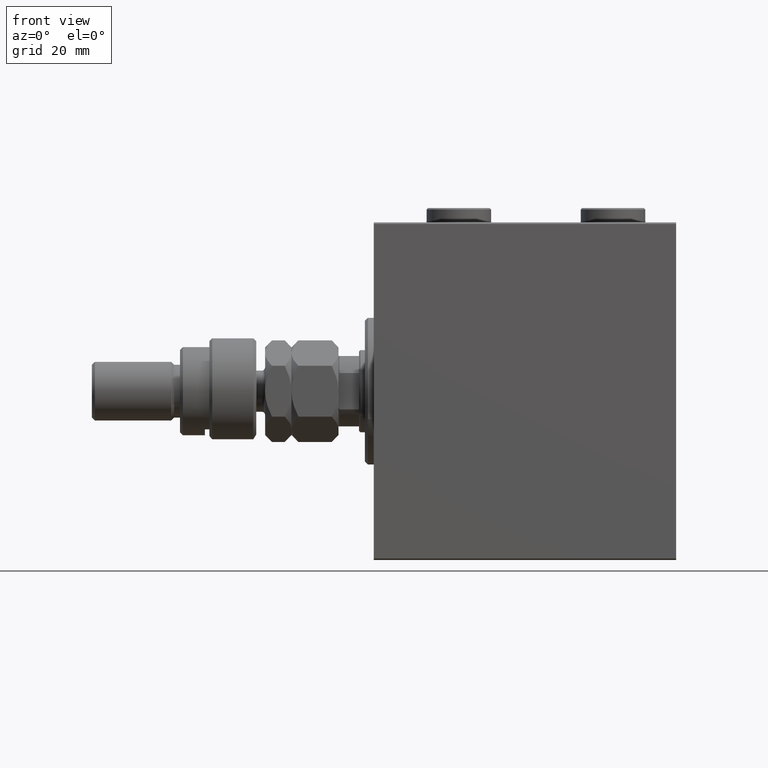
[diagram: clean part render]
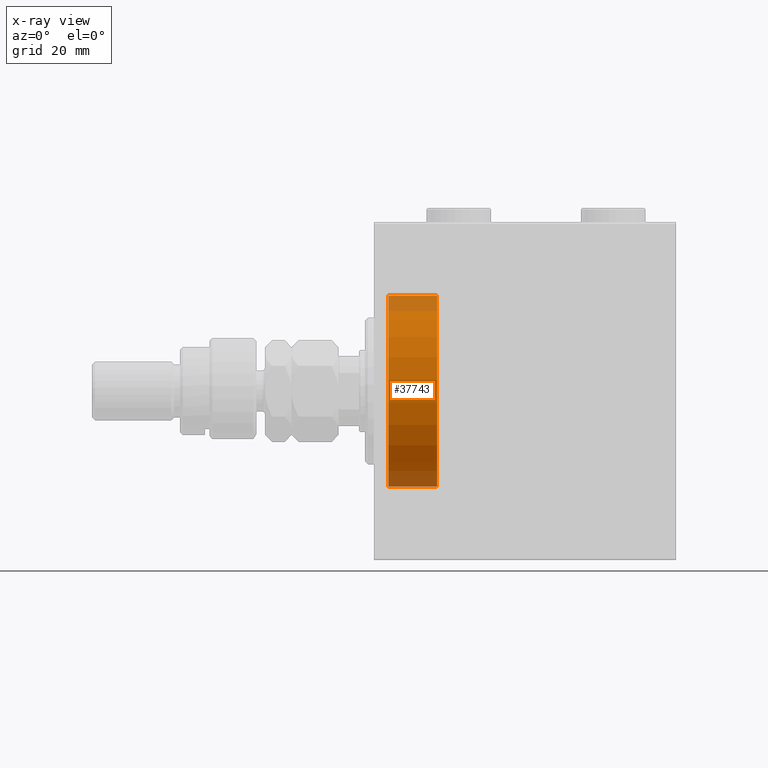
[diagram: x-ray — body ghosted, one internal face saturated and labeled with its STEP entity id]
A machine part, front view, then the same camera in x-ray: the body is ghosted and one INTERNAL B-rep face — a face not visible from any outside direction — is saturated and labeled: STEP entity #37743.
In plain terms, the highlighted cylindrical surface (partial cylindrical patch) has radius 32.5 mm, axis along (-1, -0, -0).
Its self-contained STEP definition (entity closure, byte-faithful):
#47 = VERTEX_POINT ( 'NONE', #36752 ) ;
#2287 = VERTEX_POINT ( 'NONE', #7805 ) ;
#3214 = ORIENTED_EDGE ( 'NONE', *, *, #20199, .T. ) ;
#5443 = CARTESIAN_POINT ( 'NONE',  ( 5.000000000000000000, 0.000000000000000000, 0.000000000000000000 ) ) ;
#6245 = EDGE_CURVE ( 'NONE', #10270, #20714, #7100, .T. ) ;
#7100 = CIRCLE ( 'NONE', #39662, 32.50000000000000000 ) ;
#7805 = CARTESIAN_POINT ( 'NONE',  ( 5.000000000000000000, 3.980102097228897837E-15, -32.50000000000000000 ) ) ;
#7891 = CARTESIAN_POINT ( 'NONE',  ( 21.60000000000000142, 0.000000000000000000, 32.50000000000000000 ) ) ;
#8817 = DIRECTION ( 'NONE',  ( 0.000000000000000000, 0.000000000000000000, 1.000000000000000000 ) ) ;
#9806 = DIRECTION ( 'NONE',  ( -1.000000000000000000, -0.000000000000000000, -0.000000000000000000 ) ) ;
#10270 = VERTEX_POINT ( 'NONE', #43304 ) ;
#12868 = DIRECTION ( 'NONE',  ( -1.000000000000000000, 0.000000000000000000, 0.000000000000000000 ) ) ;
#12965 = LINE ( 'NONE', #20239, #31280 ) ;
#15233 = EDGE_LOOP ( 'NONE', ( #29102, #40074, #3214, #35023 ) ) ;
#16766 = EDGE_CURVE ( 'NONE', #10270, #2287, #12965, .T. ) ;
#18325 = CYLINDRICAL_SURFACE ( 'NONE', #36730, 32.50000000000000000 ) ;
#19901 = DIRECTION ( 'NONE',  ( 0.000000000000000000, 0.000000000000000000, 1.000000000000000000 ) ) ;
#20199 = EDGE_CURVE ( 'NONE', #2287, #47, #37592, .T. ) ;
#20239 = CARTESIAN_POINT ( 'NONE',  ( 21.60000000000000142, 3.980102097228897837E-15, -32.50000000000000000 ) ) ;
#20714 = VERTEX_POINT ( 'NONE', #41257 ) ;
#25107 = CARTESIAN_POINT ( 'NONE',  ( 21.60000000000000142, 0.000000000000000000, 0.000000000000000000 ) ) ;
#26055 = VECTOR ( 'NONE', #27048, 1000.000000000000000 ) ;
#27048 = DIRECTION ( 'NONE',  ( -1.000000000000000000, -0.000000000000000000, -0.000000000000000000 ) ) ;
#28319 = AXIS2_PLACEMENT_3D ( 'NONE', #5443, #42078, #8817 ) ;
#29102 = ORIENTED_EDGE ( 'NONE', *, *, #6245, .F. ) ;
#30432 = LINE ( 'NONE', #7891, #26055 ) ;
#31280 = VECTOR ( 'NONE', #9806, 1000.000000000000000 ) ;
#35023 = ORIENTED_EDGE ( 'NONE', *, *, #44419, .F. ) ;
#36276 = DIRECTION ( 'NONE',  ( 0.000000000000000000, 0.000000000000000000, 1.000000000000000000 ) ) ;
#36730 = AXIS2_PLACEMENT_3D ( 'NONE', #25107, #39928, #36276 ) ;
#36752 = CARTESIAN_POINT ( 'NONE',  ( 5.000000000000000000, 0.000000000000000000, 32.50000000000000000 ) ) ;
#37592 = CIRCLE ( 'NONE', #28319, 32.50000000000000000 ) ;
#37743 = ADVANCED_FACE ( 'NONE', ( #47201 ), #18325, .F. ) ;
#39662 = AXIS2_PLACEMENT_3D ( 'NONE', #45863, #12868, #19901 ) ;
#39928 = DIRECTION ( 'NONE',  ( -1.000000000000000000, -0.000000000000000000, -0.000000000000000000 ) ) ;
#40074 = ORIENTED_EDGE ( 'NONE', *, *, #16766, .T. ) ;
#41257 = CARTESIAN_POINT ( 'NONE',  ( 21.60000000000000142, 0.000000000000000000, 32.50000000000000000 ) ) ;
#42078 = DIRECTION ( 'NONE',  ( -1.000000000000000000, 0.000000000000000000, 0.000000000000000000 ) ) ;
#43304 = CARTESIAN_POINT ( 'NONE',  ( 21.60000000000000142, 3.980102097228897837E-15, -32.50000000000000000 ) ) ;
#44419 = EDGE_CURVE ( 'NONE', #20714, #47, #30432, .T. ) ;
#45863 = CARTESIAN_POINT ( 'NONE',  ( 21.60000000000000142, 0.000000000000000000, 0.000000000000000000 ) ) ;
#47201 = FACE_OUTER_BOUND ( 'NONE', #15233, .T. ) ;